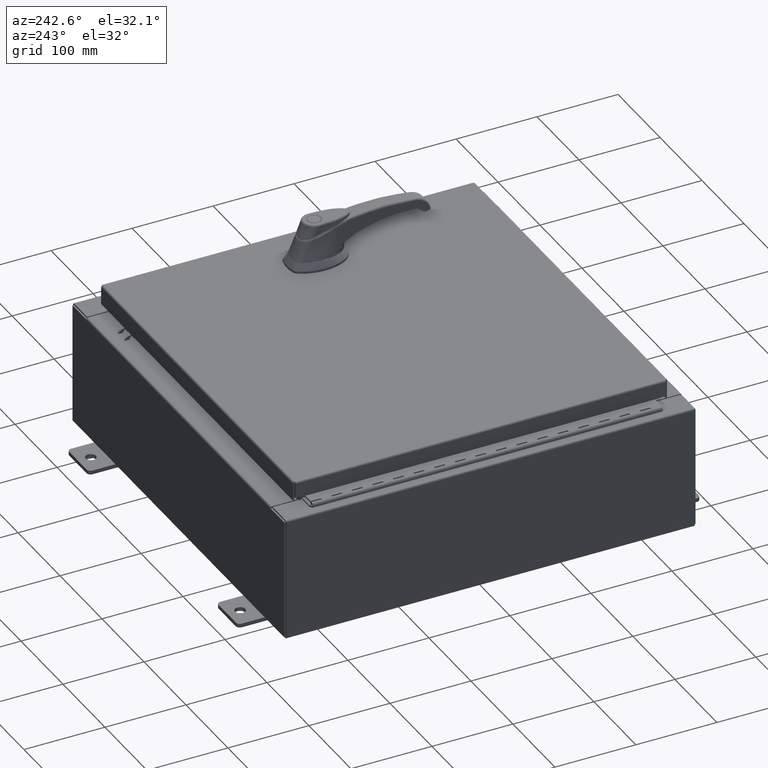
[diagram: clean part render]
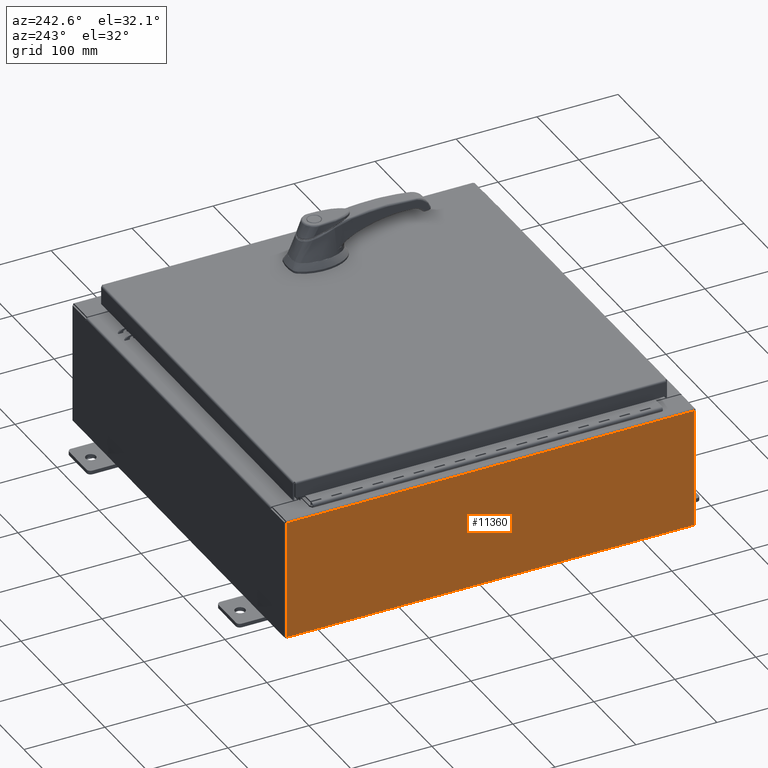
[diagram: same view with one face highlighted and labeled with its STEP entity id]
A machine part, auxiliary view. The second image highlights one B-rep face of the part: STEP entity #11360.
In plain terms, the highlighted planar face has unit normal (1, 0, 0).
Its self-contained STEP definition (entity closure, byte-faithful):
#1256 = ORIENTED_EDGE ( 'NONE', *, *, #79470, .T. ) ;
#8770 = FACE_OUTER_BOUND ( 'NONE', #61792, .T. ) ;
#10657 = CARTESIAN_POINT ( 'NONE',  ( -10.00000000000000000, 9.925300000000001800, 0.01299999999999985900 ) ) ;
#11360 = ADVANCED_FACE ( 'NONE', ( #8770 ), #61049, .F. ) ;
#12606 = LINE ( 'NONE', #105664, #32381 ) ;
#13265 = VERTEX_POINT ( 'NONE', #10657 ) ;
#20934 = CARTESIAN_POINT ( 'NONE',  ( -10.00000000000002000, -9.925299999999992900, 5.837599999999999200 ) ) ;
#30275 = CARTESIAN_POINT ( 'NONE',  ( -10.00000000000000000, 9.925300000000001800, -3.345627304943080600E-014 ) ) ;
#30587 = CARTESIAN_POINT ( 'NONE',  ( -10.00000000000002000, 9.925300000000001800, 5.837599999999999200 ) ) ;
#32381 = VECTOR ( 'NONE', #54417, 39.37007874015748100 ) ;
#33713 = CARTESIAN_POINT ( 'NONE',  ( -10.00000000000000000, -9.925299999999998200, -3.345627304943080600E-014 ) ) ;
#35965 = DIRECTION ( 'NONE',  ( 3.319545939341922800E-015, 0.0000000000000000000, -1.000000000000000000 ) ) ;
#39932 = VECTOR ( 'NONE', #42228, 39.37007874015748100 ) ;
#40435 = VERTEX_POINT ( 'NONE', #30587 ) ;
#42228 = DIRECTION ( 'NONE',  ( -3.319545939341922800E-015, 0.0000000000000000000, 1.000000000000000000 ) ) ;
#44104 = CARTESIAN_POINT ( 'NONE',  ( -10.00000000000000000, 0.0000000000000000000, -3.345627304943080600E-014 ) ) ;
#46031 = ORIENTED_EDGE ( 'NONE', *, *, #71323, .T. ) ;
#54119 = ORIENTED_EDGE ( 'NONE', *, *, #90135, .T. ) ;
#54417 = DIRECTION ( 'NONE',  ( -0.0000000000000000000, 1.000000000000000000, -0.0000000000000000000 ) ) ;
#55486 = EDGE_CURVE ( 'NONE', #90298, #13265, #12606, .T. ) ;
#55997 = ORIENTED_EDGE ( 'NONE', *, *, #55486, .F. ) ;
#61049 = PLANE ( 'NONE',  #102678 ) ;
#61085 = LINE ( 'NONE', #30275, #105931 ) ;
#61792 = EDGE_LOOP ( 'NONE', ( #46031, #54119, #55997, #1256 ) ) ;
#71323 = EDGE_CURVE ( 'NONE', #106772, #40435, #97596, .T. ) ;
#72315 = DIRECTION ( 'NONE',  ( 3.319545939341922800E-015, 0.0000000000000000000, -1.000000000000000000 ) ) ;
#72321 = DIRECTION ( 'NONE',  ( 0.0000000000000000000, 1.000000000000000000, 0.0000000000000000000 ) ) ;
#72520 = VECTOR ( 'NONE', #72321, 39.37007874015748100 ) ;
#79470 = EDGE_CURVE ( 'NONE', #90298, #106772, #107210, .T. ) ;
#86497 = DIRECTION ( 'NONE',  ( 1.000000000000000000, 0.0000000000000000000, 3.319545939341922800E-015 ) ) ;
#89285 = CARTESIAN_POINT ( 'NONE',  ( -10.00000000000002000, -9.925299999999992900, 5.837599999999999200 ) ) ;
#90135 = EDGE_CURVE ( 'NONE', #40435, #13265, #61085, .T. ) ;
#90298 = VERTEX_POINT ( 'NONE', #108040 ) ;
#97596 = LINE ( 'NONE', #89285, #72520 ) ;
#102678 = AXIS2_PLACEMENT_3D ( 'NONE', #44104, #86497, #35965 ) ;
#105664 = CARTESIAN_POINT ( 'NONE',  ( -10.00000000000000000, 9.925300000000001800, 0.01299999999999986400 ) ) ;
#105931 = VECTOR ( 'NONE', #72315, 39.37007874015748100 ) ;
#106772 = VERTEX_POINT ( 'NONE', #20934 ) ;
#107210 = LINE ( 'NONE', #33713, #39932 ) ;
#108040 = CARTESIAN_POINT ( 'NONE',  ( -10.00000000000000000, -9.925299999999996500, 0.01299999999999986400 ) ) ;